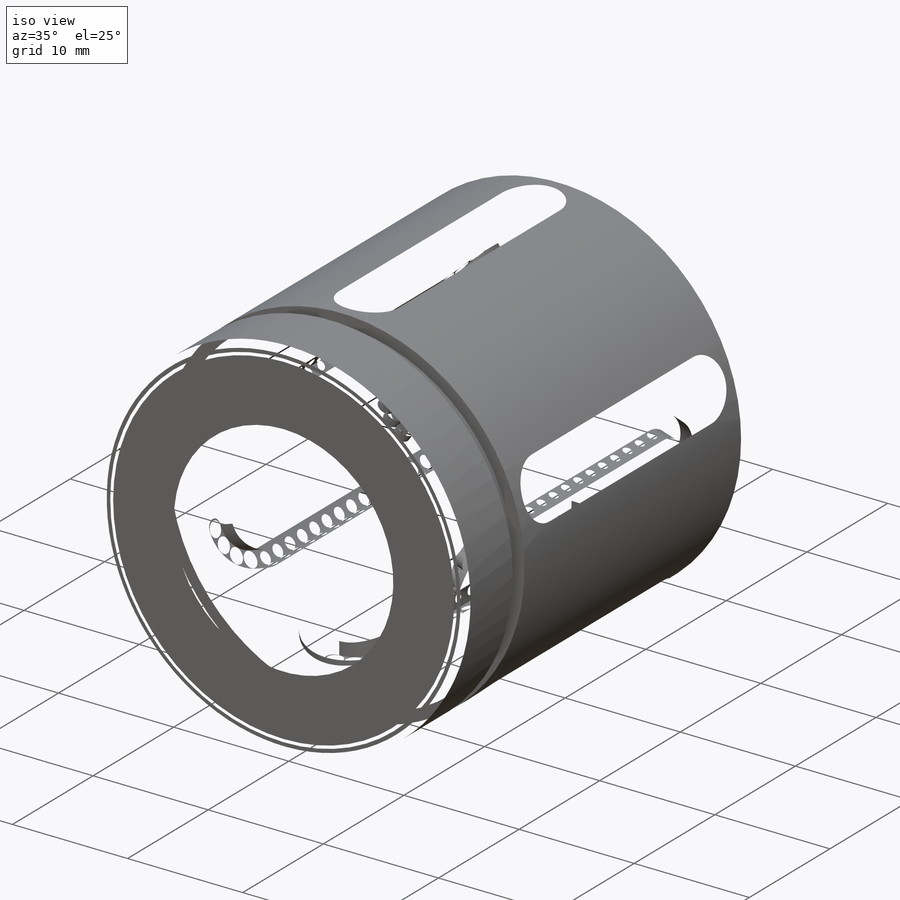
[diagram: iso view]
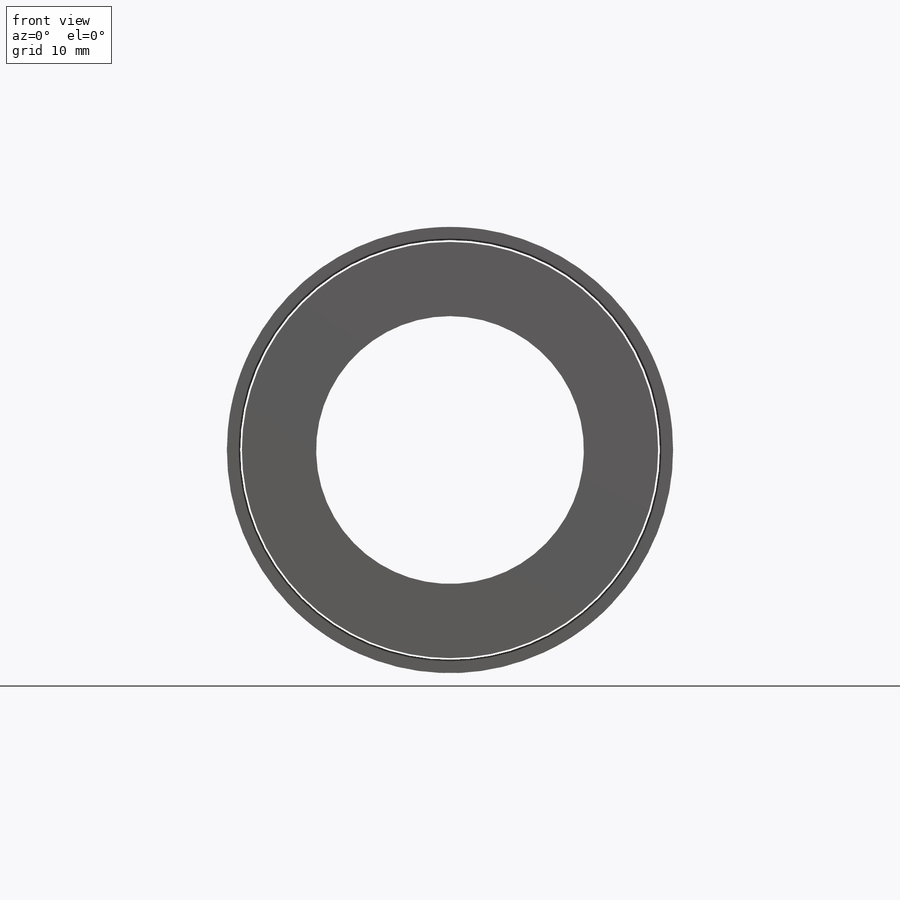
[diagram: front view]
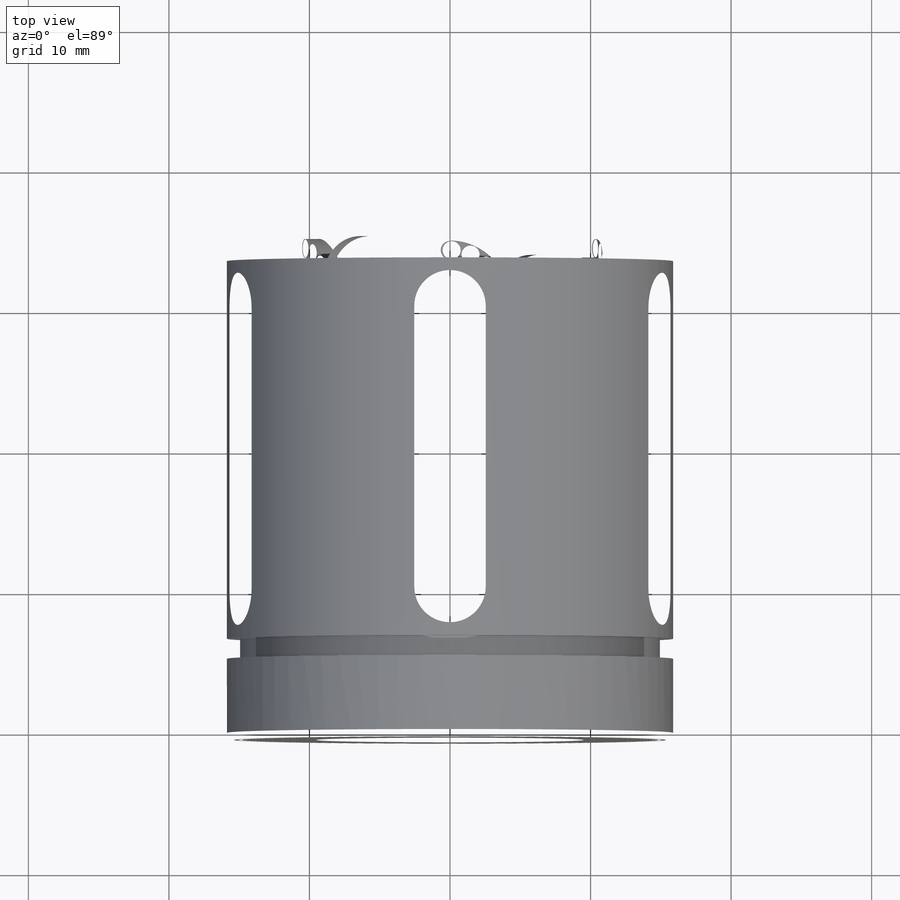
[diagram: top view]
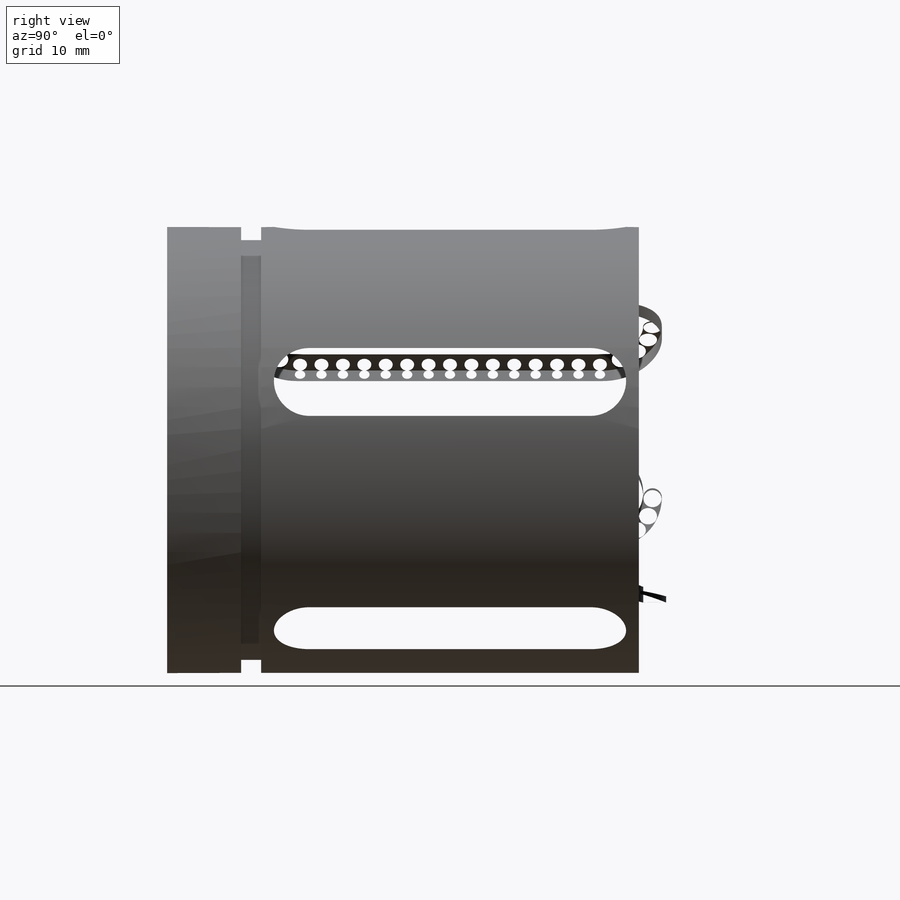
[diagram: right view]
SOLIDWORKS PART (.sldprt)
format: sldprt  version: not decoded by parser v0  size: 2,902,016 bytes
history: native  units: mm
features: sketch x15, extrude x6, cut_extrude x6, fillet x4, pattern_circular x4, cut_revolve x2, mirror x2, delete_body x2, material x1, revolve x1, pattern_linear x1 (+11 scaffold rows collapsed)
feature tree (55):
  scaffold x11  (default folders/planes/origin — collapsed)
  material  "AISI 304"
  sketch  "Sketch1"  dims[OD =31.75mm]
  extrude  "Extrude1"  Depth=41.275mm MMC B =41.275mm
  sketch  "Sketch2"  dims[MMC C =29.718mm Supplier C2 =1.4224mm Groove Depth =0.9398mm]
  cut_revolve  "Cut-Revolve1"  Angle=360deg
  sketch  "Sketch4"  dims[D1=~27.516667mm D2=5.08mm]
  cut_extrude  "Cut-Extrude3"  Depth=86.36mm
  fillet  "Fillet2"  Radius=3.175mm
  pattern_circular  "CirPattern1"  Count=5 Angle=360deg
  sketch  "Sketch5"  dims[ID =19.05mm]
  cut_extrude  "Cut-Extrude4"  [1 undecoded]
  sketch  "Sketch6"  dims[c1.D1=2.286mm c1.D2=3.048mm c2.D2=60.0deg]
  cut_revolve  "Cut-Revolve2"  Angle=360deg
  sketch  "Sketch8"  dims[c1.D1=0.9525mm c1.D2=~1.176821mm c2.D2=72.0deg c2.D3=~1.300696mm c3.D3=30.0deg]
  extrude  "Extrude2"  [1 undecoded]
  pattern_circular  "CirPattern2"  Count=5 Angle=360deg
  sketch  "Sketch9"  dims[c1.D1=3.175mm c1.D2=6.35mm c2.D1=~5.673646mm c2.D3=3.175mm]
  extrude  "Extrude3"  [1 undecoded]
  pattern_circular  "CirPattern3"  Count=5 Angle=360deg
  sketch  "Sketch10"  dims[D1=25.4mm]
  cut_extrude  "Cut-Extrude5"  [1 undecoded]
  fillet  "Fillet3"  Radius=0.889mm
  sketch  "Sketch11"  dims[D1=~0.309563mm D2=~0.309563mm]
  cut_extrude  "Cut-Extrude6"  [1 undecoded]
  sketch  "Sketch12"  dims[D1=~0.09525mm D2=~0.09525mm]
  revolve  "Revolve1"  Angle=360deg
  pattern_linear  "LPattern1"  Count1=8 Count2=8 Spacing1=1.524mm Spacing2=1.524mm
  sketch  "Sketch13"  dims[D1=~0.023813mm]
  extrude  "Extrude4"  [1 undecoded]
  mirror  "Mirror1"
  pattern_circular  "CirPattern4"  Count=5 Angle=360deg
  sketch  "Sketch14"
  cut_extrude  "Cut-Extrude7"  [1 undecoded]
  fillet  "Fillet4"  Radius=0.639748mm
  sketch  "Sketch15"  dims[c1.D1=35.2343mm c1.D2=~34.222247mm c2.D1=0.8128mm c2.D2=0.254mm]
  cut_extrude  "Cut-Extrude8"  Depth=0.917222mm
  mirror  "Mirror2"
  fillet  "Fillet5"  Radius=0.508mm
  sketch  "Sketch16"  dims[c1.Retaining Ring OD =33.0454mm c1.D4=~29.067713mm c1.D1=~40.79679mm c1.D2=~23.844269mm c2.D2=90.0deg]
  extrude  "Extrude5"  Depth=1.27mm Retaining Ring Thickness =1.27mm
  sketch  "Sketch17"
  extrude  "Extrude6"  Depth=1.27mm
  delete_body  "Body-Delete1"
  delete_body  "Body-Delete2"
decode coverage: 30 of 43 modeling features carry decoded parameters
note: ~ marks probable driven/reference dimensions
note: 7 parameter values undecoded
summary: no parameter record found for 7 features
note: suppression state not decoded; provenance and decode notes live in map.json
